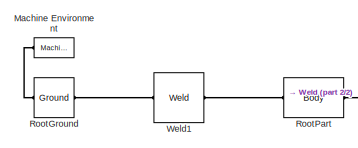
[diagram: root canvas - part 1/2, top left region]
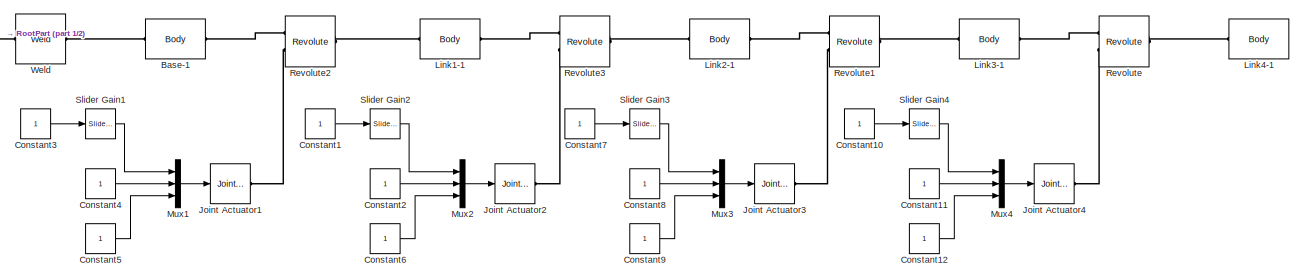
[diagram: root canvas - part 2/2, most of the canvas]
MODEL slx_5e3d80587f79
KIND model
CONFIG AbsTol = auto
CONFIG EnableMultiTasking = off
CONFIG FixedStep = auto
CONFIG MaxStep = auto
CONFIG MinStep = auto
CONFIG RelTol = 1e-3
CONFIG SampleTimeConstraint = Unconstrained
CONFIG Solver = VariableStepAuto
CONFIG SolverName = VariableStepAuto
CONFIG StartFcn = 1
CONFIG StartTime = 0.0
CONFIG StopTime = inf
BLOCK [Reference] Base-1  REF=mblibv1/Bodies/Body
  Ports = [0, 0, 0, 0, 0, 1, 1]
  SourceBlock = mblibv1/Bodies/Body
  SourceProductBaseCode = MS
  SourceProductName = Simscape Multibody
  SourceType = Body
BLOCK [Constant] Constant1
BLOCK [Constant] Constant10
BLOCK [Constant] Constant11
BLOCK [Constant] Constant12
BLOCK [Constant] Constant2
BLOCK [Constant] Constant3
BLOCK [Constant] Constant4
BLOCK [Constant] Constant5
BLOCK [Constant] Constant6
BLOCK [Constant] Constant7
BLOCK [Constant] Constant8
BLOCK [Constant] Constant9
BLOCK [Reference] Joint Actuator1  REF=mblibv1/Sensors & 
Actuators/Joint Actuator
  Ports = [1, 0, 0, 0, 0, 0, 1]
  SourceBlock = mblibv1/Sensors & \nActuators/Joint Actuator
  SourceProductBaseCode = MS
  SourceProductName = Simscape Multibody
  SourceType = Joint Actuator
BLOCK [Reference] Joint Actuator2  REF=mblibv1/Sensors & 
Actuators/Joint Actuator
  Ports = [1, 0, 0, 0, 0, 0, 1]
  SourceBlock = mblibv1/Sensors & \nActuators/Joint Actuator
  SourceProductBaseCode = MS
  SourceProductName = Simscape Multibody
  SourceType = Joint Actuator
BLOCK [Reference] Joint Actuator3  REF=mblibv1/Sensors & 
Actuators/Joint Actuator
  Ports = [1, 0, 0, 0, 0, 0, 1]
  SourceBlock = mblibv1/Sensors & \nActuators/Joint Actuator
  SourceProductBaseCode = MS
  SourceProductName = Simscape Multibody
  SourceType = Joint Actuator
BLOCK [Reference] Joint Actuator4  REF=mblibv1/Sensors & 
Actuators/Joint Actuator
  Ports = [1, 0, 0, 0, 0, 0, 1]
  SourceBlock = mblibv1/Sensors & \nActuators/Joint Actuator
  SourceProductBaseCode = MS
  SourceProductName = Simscape Multibody
  SourceType = Joint Actuator
BLOCK [Reference] Link1-1  REF=mblibv1/Bodies/Body
  Ports = [0, 0, 0, 0, 0, 1, 1]
  SourceBlock = mblibv1/Bodies/Body
  SourceProductBaseCode = MS
  SourceProductName = Simscape Multibody
  SourceType = Body
BLOCK [Reference] Link2-1  REF=mblibv1/Bodies/Body
  Ports = [0, 0, 0, 0, 0, 1, 1]
  SourceBlock = mblibv1/Bodies/Body
  SourceProductBaseCode = MS
  SourceProductName = Simscape Multibody
  SourceType = Body
BLOCK [Reference] Link3-1  REF=mblibv1/Bodies/Body
  Ports = [0, 0, 0, 0, 0, 1, 1]
  SourceBlock = mblibv1/Bodies/Body
  SourceProductBaseCode = MS
  SourceProductName = Simscape Multibody
  SourceType = Body
BLOCK [Reference] Link4-1  REF=mblibv1/Bodies/Body
  Ports = [0, 0, 0, 0, 0, 1]
  SourceBlock = mblibv1/Bodies/Body
  SourceProductBaseCode = MS
  SourceProductName = Simscape Multibody
  SourceType = Body
BLOCK [Reference] Machine Environment  REF=mblibv1/Bodies/Machine
Environment
  Ports = [0, 0, 0, 0, 0, 0, 1]
  SourceBlock = mblibv1/Bodies/Machine\nEnvironment
  SourceProductBaseCode = MS
  SourceProductName = Simscape Multibody
  SourceType = Machine Environment
BLOCK [Mux] Mux1
  DisplayOption = bar
  Inputs = 3
  Ports = [3, 1]
BLOCK [Mux] Mux2
  DisplayOption = bar
  Inputs = 3
  Ports = [3, 1]
BLOCK [Mux] Mux3
  DisplayOption = bar
  Inputs = 3
  Ports = [3, 1]
BLOCK [Mux] Mux4
  DisplayOption = bar
  Inputs = 3
  Ports = [3, 1]
BLOCK [Reference] Revolute  REF=mblibv1/Joints/Revolute
  Ports = [0, 0, 0, 0, 0, 2, 1]
  SourceBlock = mblibv1/Joints/Revolute
  SourceProductBaseCode = MS
  SourceProductName = Simscape Multibody
  SourceType = Revolute
BLOCK [Reference] Revolute1  REF=mblibv1/Joints/Revolute
  Ports = [0, 0, 0, 0, 0, 2, 1]
  SourceBlock = mblibv1/Joints/Revolute
  SourceProductBaseCode = MS
  SourceProductName = Simscape Multibody
  SourceType = Revolute
BLOCK [Reference] Revolute2  REF=mblibv1/Joints/Revolute
  Ports = [0, 0, 0, 0, 0, 2, 1]
  SourceBlock = mblibv1/Joints/Revolute
  SourceProductBaseCode = MS
  SourceProductName = Simscape Multibody
  SourceType = Revolute
BLOCK [Reference] Revolute3  REF=mblibv1/Joints/Revolute
  Ports = [0, 0, 0, 0, 0, 2, 1]
  SourceBlock = mblibv1/Joints/Revolute
  SourceProductBaseCode = MS
  SourceProductName = Simscape Multibody
  SourceType = Revolute
BLOCK [Reference] RootGround  REF=mblibv1/Bodies/Ground
  Ports = [0, 0, 0, 0, 0, 1, 1]
  SourceBlock = mblibv1/Bodies/Ground
  SourceProductBaseCode = MS
  SourceProductName = Simscape Multibody
  SourceType = Ground
  UserDataPersistent = on
BLOCK [Reference] RootPart  REF=mblibv1/Bodies/Body
  Ports = [0, 0, 0, 0, 0, 1, 1]
  SourceBlock = mblibv1/Bodies/Body
  SourceProductBaseCode = MS
  SourceProductName = Simscape Multibody
  SourceType = Body
BLOCK [Reference] Slider Gain1  REF=simulink/Math
Operations/Slider
Gain
  Ports = [1, 1]
  SourceBlock = simulink/Math\nOperations/Slider\nGain
  SourceProductBaseCode = SL
  SourceProductName = Simulink
  SourceType = Slider Gain
BLOCK [Reference] Slider Gain2  REF=simulink/Math
Operations/Slider
Gain
  Ports = [1, 1]
  SourceBlock = simulink/Math\nOperations/Slider\nGain
  SourceProductBaseCode = SL
  SourceProductName = Simulink
  SourceType = Slider Gain
BLOCK [Reference] Slider Gain3  REF=simulink/Math
Operations/Slider
Gain
  Ports = [1, 1]
  SourceBlock = simulink/Math\nOperations/Slider\nGain
  SourceProductBaseCode = SL
  SourceProductName = Simulink
  SourceType = Slider Gain
BLOCK [Reference] Slider Gain4  REF=simulink/Math
Operations/Slider
Gain
  Ports = [1, 1]
  SourceBlock = simulink/Math\nOperations/Slider\nGain
  SourceProductBaseCode = SL
  SourceProductName = Simulink
  SourceType = Slider Gain
BLOCK [Reference] Weld  REF=mblibv1/Joints/Weld
  Ports = [0, 0, 0, 0, 0, 1, 1]
  SourceBlock = mblibv1/Joints/Weld
  SourceProductBaseCode = MS
  SourceProductName = Simscape Multibody
  SourceType = Weld
BLOCK [Reference] Weld1  REF=mblibv1/Joints/Weld
  Ports = [0, 0, 0, 0, 0, 1, 1]
  SourceBlock = mblibv1/Joints/Weld
  SourceProductBaseCode = MS
  SourceProductName = Simscape Multibody
  SourceType = Weld
LINE Constant10:1 -> Slider Gain4:1
LINE Constant11:1 -> Mux4:2
LINE Constant12:1 -> Mux4:3
LINE Constant1:1 -> Slider Gain2:1
LINE Constant2:1 -> Mux2:2
LINE Constant3:1 -> Slider Gain1:1
LINE Constant4:1 -> Mux1:2
LINE Constant5:1 -> Mux1:3
LINE Constant6:1 -> Mux2:3
LINE Constant7:1 -> Slider Gain3:1
LINE Constant8:1 -> Mux3:2
LINE Constant9:1 -> Mux3:3
LINE Mux1:1 -> Joint Actuator1:1
LINE Mux2:1 -> Joint Actuator2:1
LINE Mux3:1 -> Joint Actuator3:1
LINE Mux4:1 -> Joint Actuator4:1
LINE Slider Gain1:1 -> Mux1:1
LINE Slider Gain2:1 -> Mux2:1
LINE Slider Gain3:1 -> Mux3:1
LINE Slider Gain4:1 -> Mux4:1
PLINE Base-1:LConn1 -- Weld:RConn1
PLINE Base-1:RConn1 -- Revolute2:LConn1
PLINE Joint Actuator1:RConn1 -- Revolute2:LConn2
PLINE Joint Actuator2:RConn1 -- Revolute3:LConn2
PLINE Joint Actuator3:RConn1 -- Revolute1:LConn2
PLINE Joint Actuator4:RConn1 -- Revolute:LConn2
PLINE Link1-1:LConn1 -- Revolute2:RConn1
PLINE Link1-1:RConn1 -- Revolute3:LConn1
PLINE Link2-1:LConn1 -- Revolute3:RConn1
PLINE Link2-1:RConn1 -- Revolute1:LConn1
PLINE Link3-1:LConn1 -- Revolute1:RConn1
PLINE Link3-1:RConn1 -- Revolute:LConn1
PLINE Link4-1:LConn1 -- Revolute:RConn1
PLINE Machine Environment:RConn1 -- RootGround:LConn1
PLINE RootGround:RConn1 -- Weld1:LConn1
PLINE RootPart:LConn1 -- Weld1:RConn1
PLINE RootPart:RConn1 -- Weld:LConn1
